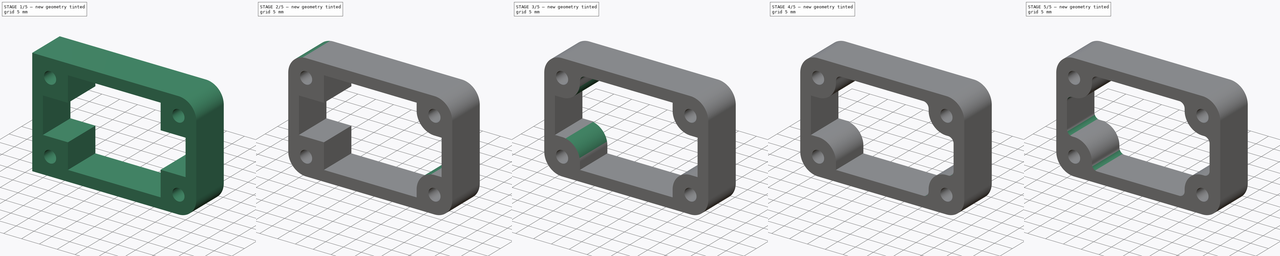
[diagram: build sequence overview — one tinted view per stage of 5, left to right]
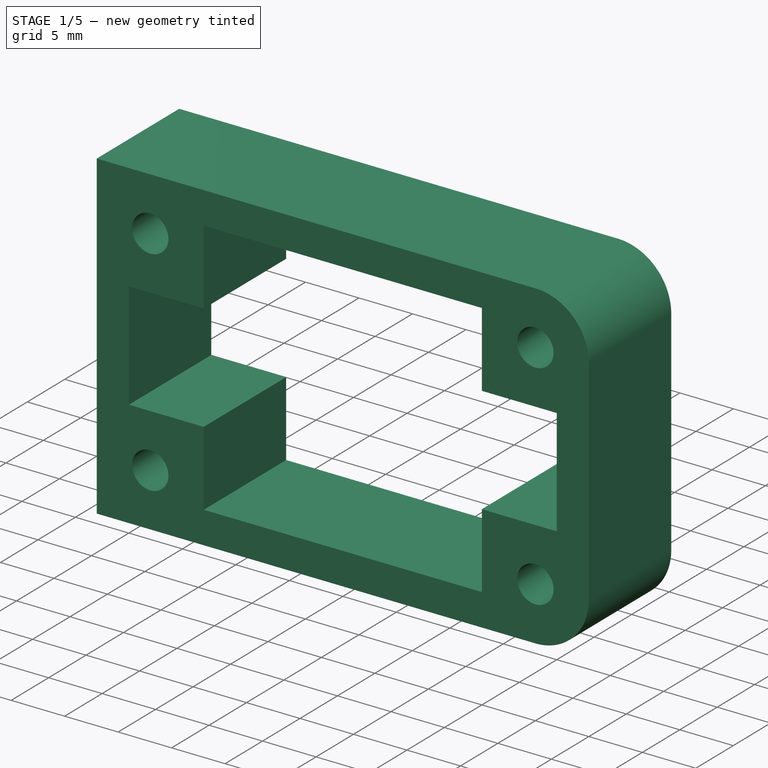
[diagram: stage 1 of 5 — iso view after this stage's code; geometry added in this stage tinted green]
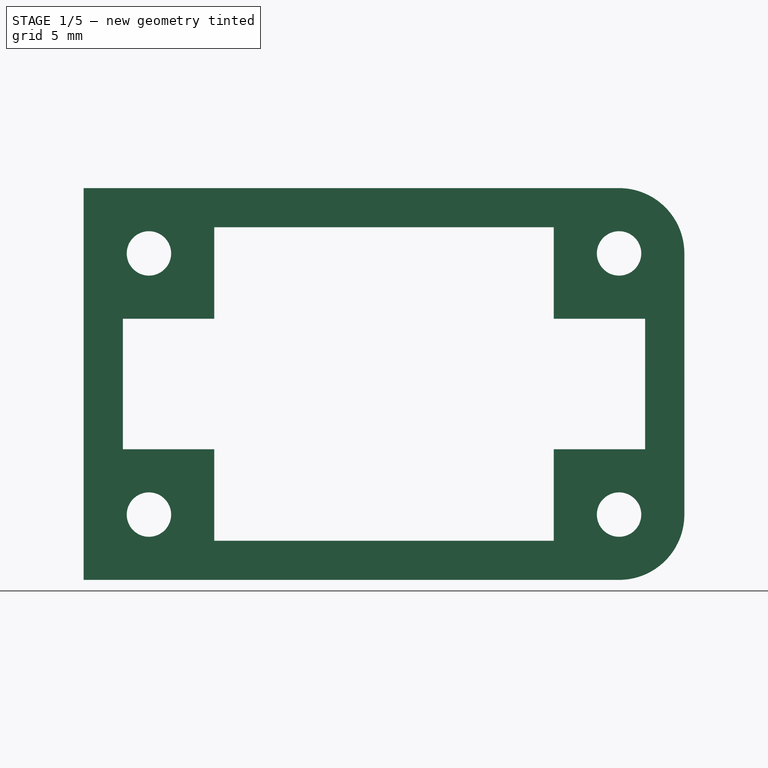
[diagram: stage 1 of 5 — front view after this stage's code; geometry added in this stage tinted green]
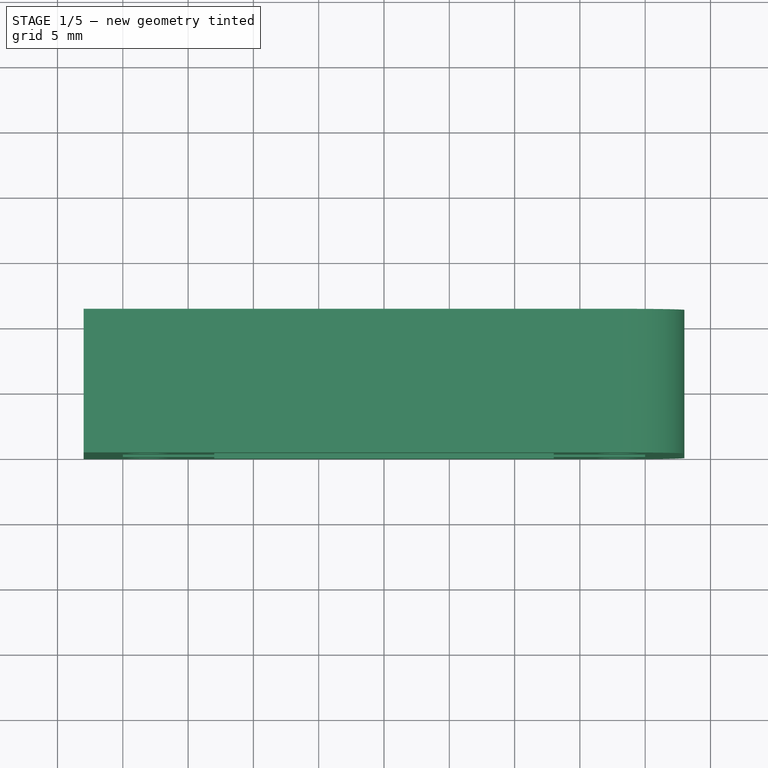
[diagram: stage 1 of 5 — top view after this stage's code; geometry added in this stage tinted green]
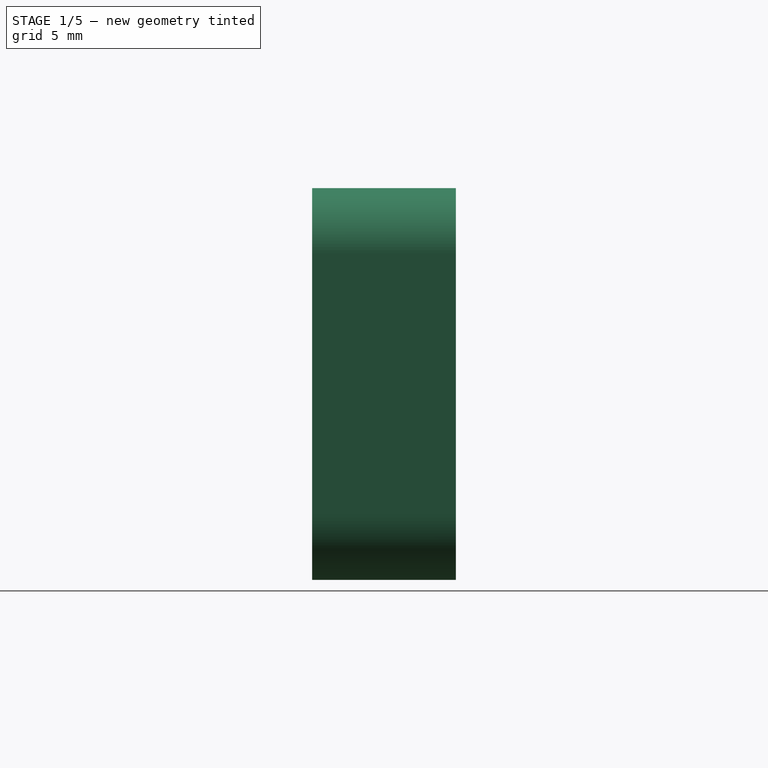
[diagram: stage 1 of 5 — right view after this stage's code; geometry added in this stage tinted green]
FCSTD DOCUMENT  (FreeCAD 0.16R6706 (Git))
Label: DriveMountStandoff
License: All rights reserved
LicenseURL: http://en.wikipedia.org/wiki/All_rights_reserved
objects: PartDesign::Fillet×16, Sketcher::SketchObject×1, PartDesign::Pad×1
note: 19 computed .brp shape members not serialized (recipe doc carries the construction recipe); baked Part::Feature solids carry a one-line shape summary decoded from their .brp

FEATURE [Sketcher::SketchObject] Sketch006
  Placement = pos=(0,25,0) rot=(0,0.707107,0.707107;3.14159rad)
  sketch-geometry (26):
    g0: Circle CenterX=-18 CenterY=20 CenterZ=0 NormalX=0 NormalY=0 NormalZ=1 Radius=1.7
    g1: Circle CenterX=18 CenterY=20 CenterZ=0 NormalX=0 NormalY=0 NormalZ=1 Radius=1.7
    g2: Circle CenterX=-18 CenterY=40 CenterZ=0 NormalX=0 NormalY=0 NormalZ=1 Radius=1.7
    g3: Circle CenterX=18 CenterY=40 CenterZ=0 NormalX=0 NormalY=0 NormalZ=1 Radius=1.7
    g4: LineSegment [constr] StartX=-18 StartY=40 StartZ=0 EndX=-18 EndY=20 EndZ=0
    g5: LineSegment StartX=-23 StartY=45 StartZ=0 EndX=23 EndY=45 EndZ=0
    g6: LineSegment StartX=23 StartY=45 StartZ=0 EndX=23 EndY=15 EndZ=0
    g7: LineSegment StartX=23 StartY=15 StartZ=0 EndX=-23 EndY=15 EndZ=0
    g8: LineSegment StartX=-23 StartY=15 StartZ=0 EndX=-23 EndY=45 EndZ=0
    g9: LineSegment [constr] StartX=-13 StartY=35 StartZ=0 EndX=13 EndY=35 EndZ=0
    g10: LineSegment [constr] StartX=13 StartY=35 StartZ=0 EndX=13 EndY=25 EndZ=0
    g11: LineSegment [constr] StartX=13 StartY=25 StartZ=0 EndX=-13 EndY=25 EndZ=0
    g12: LineSegment [constr] StartX=-13 StartY=25 StartZ=0 EndX=-13 EndY=35 EndZ=0
    g13: LineSegment StartX=-13 StartY=35 StartZ=0 EndX=-13 EndY=42 EndZ=0
    g14: LineSegment StartX=-13 StartY=42 StartZ=0 EndX=13 EndY=42 EndZ=0
    g15: LineSegment StartX=13 StartY=42 StartZ=0 EndX=13 EndY=35 EndZ=0
    g16: LineSegment StartX=13 StartY=35 StartZ=0 EndX=20 EndY=35 EndZ=0
    g17: LineSegment StartX=20 StartY=35 StartZ=0 EndX=20 EndY=25 EndZ=0
    g18: LineSegment StartX=20 StartY=25 StartZ=0 EndX=13 EndY=25 EndZ=0
    g19: LineSegment StartX=13 StartY=25 StartZ=0 EndX=13 EndY=18 EndZ=0
    g20: LineSegment StartX=13 StartY=18 StartZ=0 EndX=-13 EndY=18 EndZ=0
    g21: LineSegment StartX=-13 StartY=18 StartZ=0 EndX=-13 EndY=25 EndZ=0
    g22: LineSegment StartX=-13 StartY=25 StartZ=0 EndX=-20 EndY=25 EndZ=0
    g23: LineSegment StartX=-20 StartY=25 StartZ=0 EndX=-20 EndY=35 EndZ=0
    g24: LineSegment StartX=-20 StartY=35 StartZ=0 EndX=-13 EndY=35 EndZ=0
    g25: GeomPoint [constr] X=0 Y=30 Z=0
  constraints (68):
    c: Radius(g0) = 1.7
    c: Equal(g0,g1)
    c: Symmetric(g1,g0,g-2)
    c: DistanceX(g0,g1) = 36
    c: DistanceY(g-1,g1) = 20
    c: Equal(g2,g3)
    c: Equal(g3,g1)
    c: Symmetric(g2,g3,g-2)
    c: Coincident(g4,g2)
    c: Coincident(g4,g0)
    c: Vertical(g4)
    c: DistanceY(g0,g2) = 20
    c: Coincident(g5,g6)
    c: Coincident(g6,g7)
    c: Coincident(g7,g8)
    c: Coincident(g8,g5)
    c: Horizontal(g5)
    c: Horizontal(g7)
    c: Vertical(g6)
    c: Vertical(g8)
    c: Symmetric(g7,g6,g-2)
    c: DistanceX(g1,g6) = 5
    c: DistanceY(g6,g1) = 5
    c: DistanceY(g3,g5) = 5
    c: Coincident(g9,g10)
    c: Coincident(g10,g11)
    c: Coincident(g11,g12)
    c: Coincident(g12,g9)
    c: Horizontal(g9)
    c: Horizontal(g11)
    c: Vertical(g10)
    c: Vertical(g12)
    c: Coincident(g9,g13)
    c: Vertical(g13)
    c: Coincident(g13,g14)
    c: Horizontal(g14)
    c: Coincident(g14,g15)
    c: Coincident(g15,g9)
    c: Vertical(g15)
    c: Coincident(g15,g16)
    c: Horizontal(g16)
    c: Coincident(g16,g17)
    c: Vertical(g17)
    c: Coincident(g17,g18)
    c: Coincident(g18,g10)
    c: Horizontal(g18)
    c: Coincident(g18,g19)
    c: Vertical(g19)
    c: Coincident(g19,g20)
    c: Horizontal(g20)
    c: Coincident(g20,g21)
    c: Coincident(g21,g11)
    c: Vertical(g21)
    c: Coincident(g21,g22)
    c: Horizontal(g22)
    c: Coincident(g22,g23)
    c: Vertical(g23)
    c: Coincident(g23,g24)
    c: Coincident(g24,g13)
    c: Horizontal(g24)
    c: Symmetric(g7,g5,g25)
    c: Symmetric(g9,g10,g25)
    c: Symmetric(g13,g19,g25)
    c: Symmetric(g22,g16,g25)
    c: DistanceY(g23,g2) = 5
    c: DistanceX(g14,g3) = 5
    c: DistanceY(g13,g5) = 3
    c: DistanceX(g7,g22) = 3
FEATURE [PartDesign::Pad] Pad
  Length = 11
  Length2 = 100
  Placement = pos=(0,25,0) rot=(0,0.707107,0.707107;3.14159rad)
  Sketch = -> Sketch006
  Type = 0
FEATURE [PartDesign::Fillet] Fillet
  Base = -> Pad [Edge1]
  Placement = pos=(0,25,0) rot=(0,0.707107,0.707107;3.14159rad)
  Radius = 5
FEATURE [PartDesign::Fillet] Fillet001
  Base = -> Fillet [Edge47]
  Placement = pos=(0,25,0) rot=(0,0.707107,0.707107;3.14159rad)
  Radius = 5
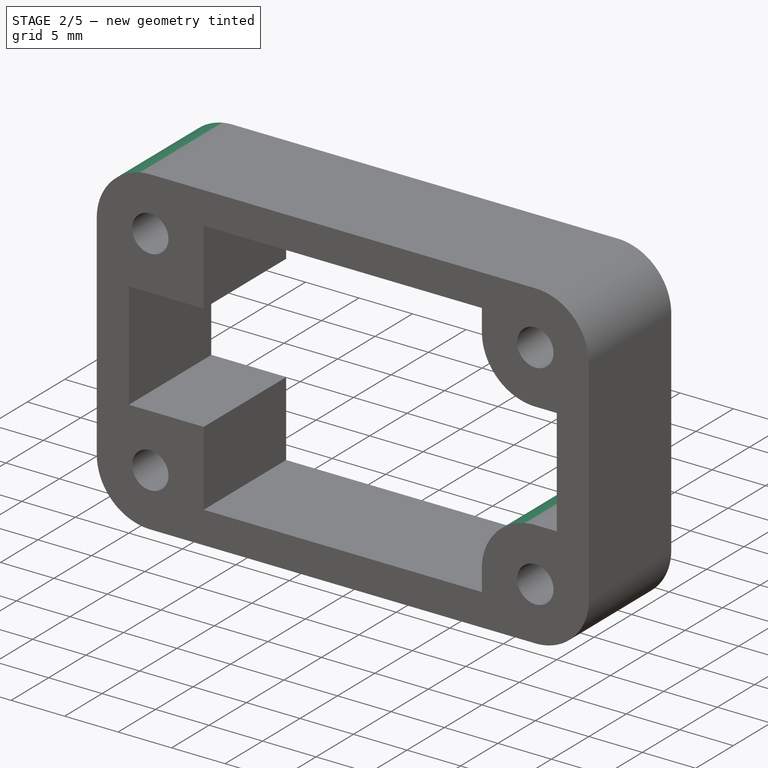
[diagram: stage 2 of 5 — iso view after this stage's code; geometry added in this stage tinted green]
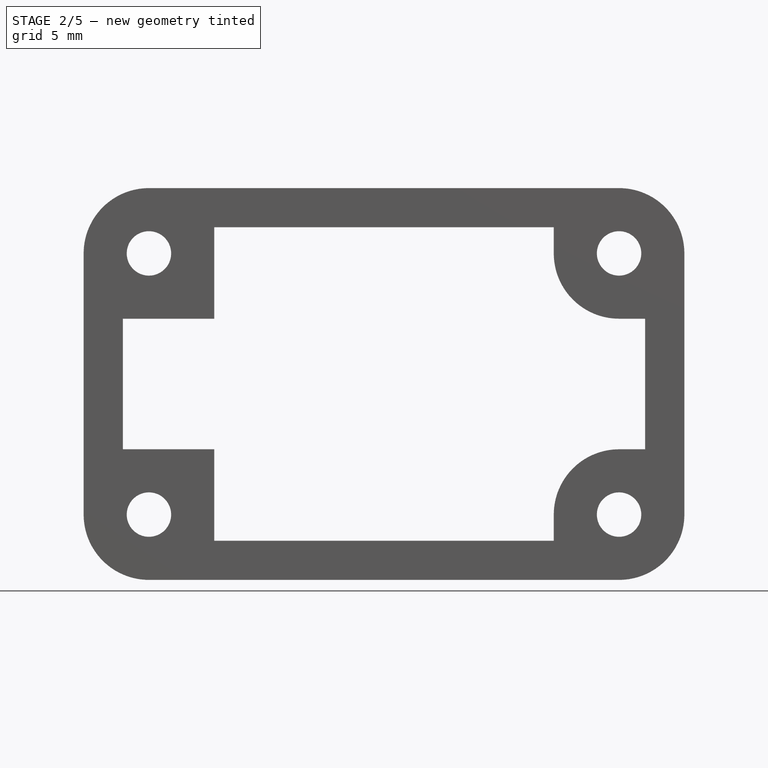
[diagram: stage 2 of 5 — front view after this stage's code; geometry added in this stage tinted green]
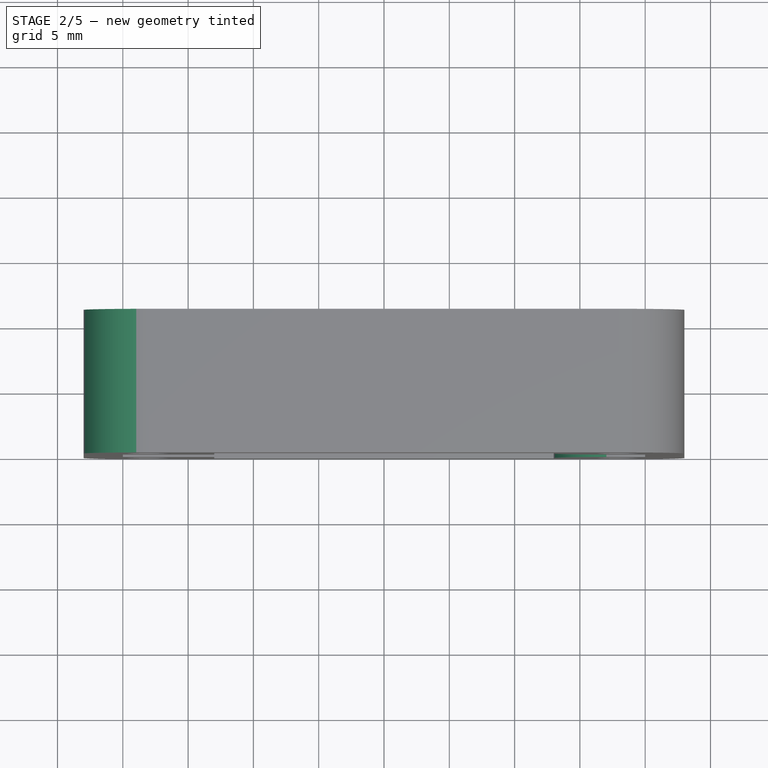
[diagram: stage 2 of 5 — top view after this stage's code; geometry added in this stage tinted green]
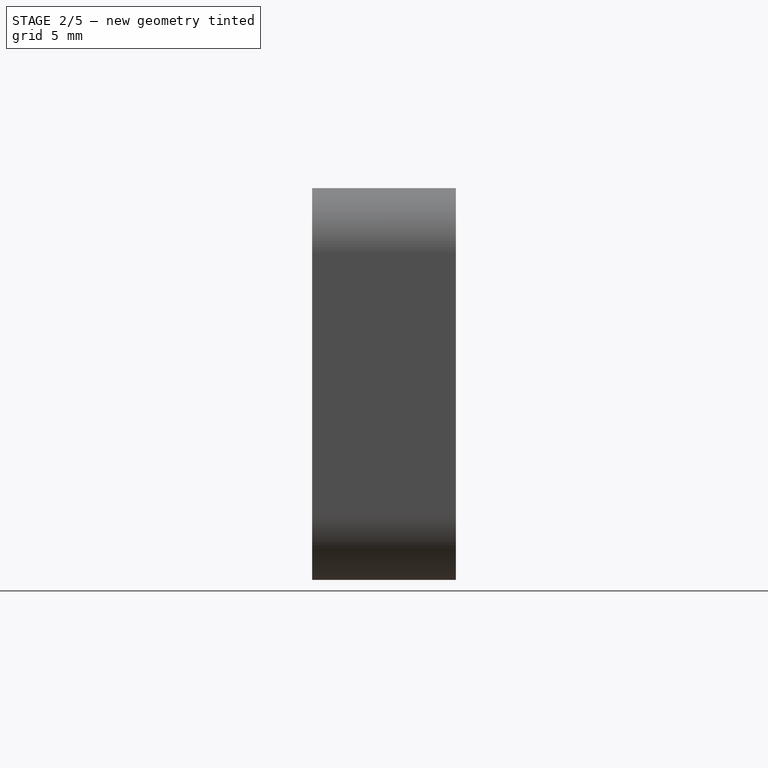
[diagram: stage 2 of 5 — right view after this stage's code; geometry added in this stage tinted green]
FEATURE [PartDesign::Fillet] Fillet002
  Base = -> Fillet001 [Edge30]
  Placement = pos=(0,25,0) rot=(0,0.707107,0.707107;3.14159rad)
  Radius = 5
FEATURE [PartDesign::Fillet] Fillet003
  Base = -> Fillet002 [Edge31]
  Placement = pos=(0,25,0) rot=(0,0.707107,0.707107;3.14159rad)
  Radius = 5
FEATURE [PartDesign::Fillet] Fillet004
  Base = -> Fillet003 [Edge58]
  Placement = pos=(0,25,0) rot=(0,0.707107,0.707107;3.14159rad)
  Radius = 5
FEATURE [PartDesign::Fillet] Fillet005
  Base = -> Fillet004 [Edge41]
  Placement = pos=(0,25,0) rot=(0,0.707107,0.707107;3.14159rad)
  Radius = 5
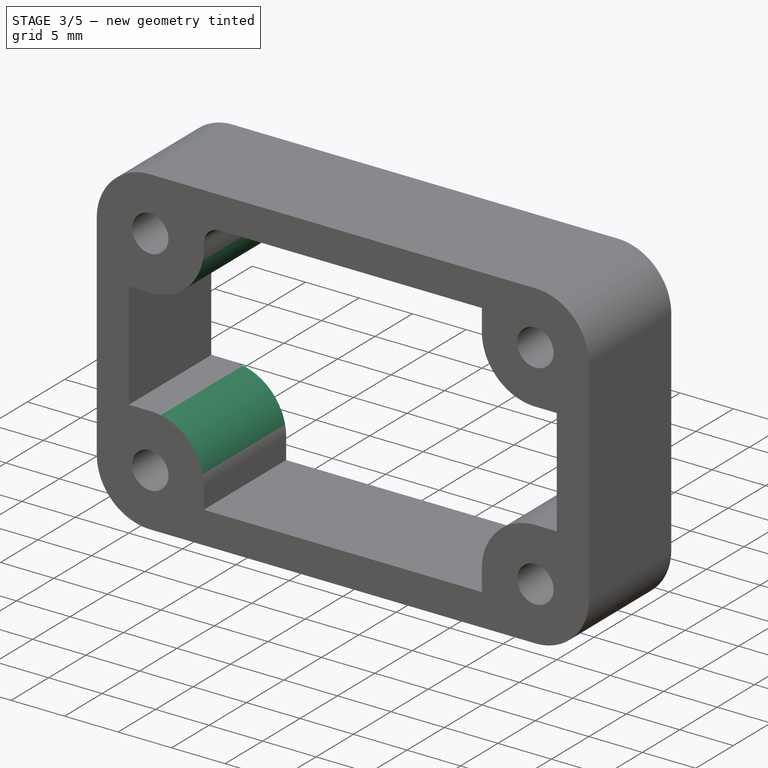
[diagram: stage 3 of 5 — iso view after this stage's code; geometry added in this stage tinted green]
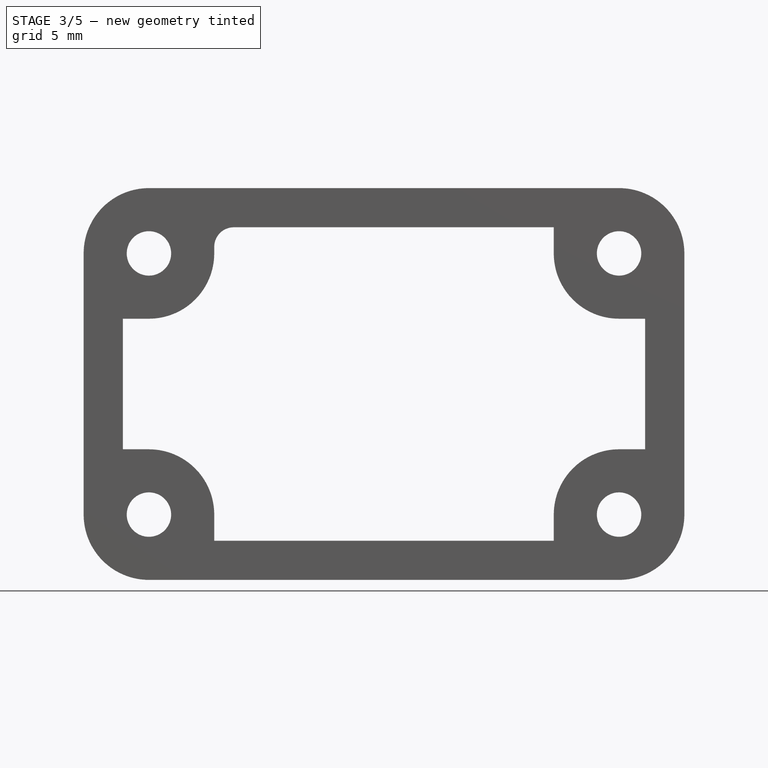
[diagram: stage 3 of 5 — front view after this stage's code; geometry added in this stage tinted green]
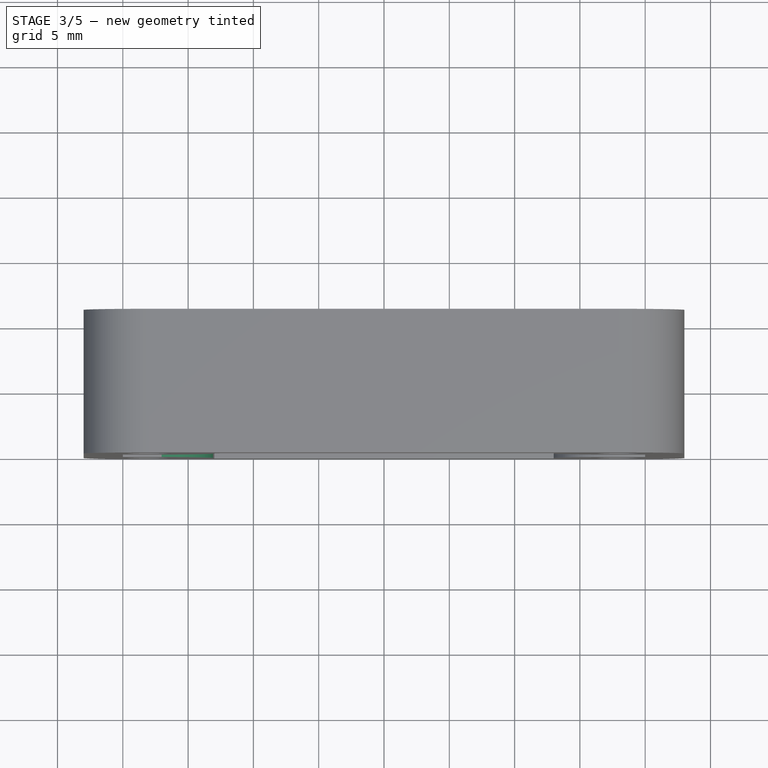
[diagram: stage 3 of 5 — top view after this stage's code; geometry added in this stage tinted green]
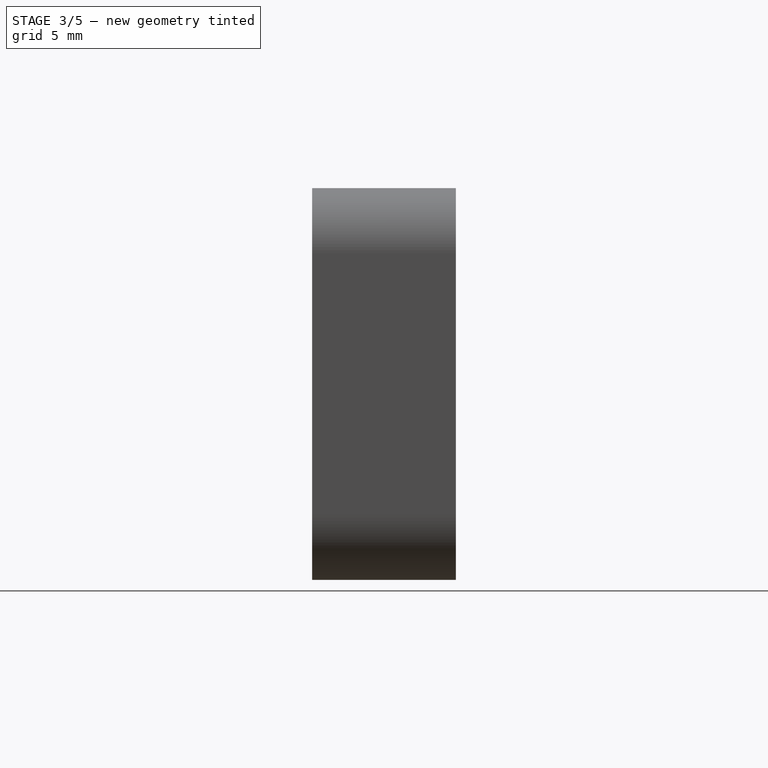
[diagram: stage 3 of 5 — right view after this stage's code; geometry added in this stage tinted green]
FEATURE [PartDesign::Fillet] Fillet006
  Base = -> Fillet005 [Edge42]
  Placement = pos=(0,25,0) rot=(0,0.707107,0.707107;3.14159rad)
  Radius = 5
FEATURE [PartDesign::Fillet] Fillet007
  Base = -> Fillet006 [Edge43]
  Placement = pos=(0,25,0) rot=(0,0.707107,0.707107;3.14159rad)
  Radius = 5
FEATURE [PartDesign::Fillet] Fillet008
  Base = -> Fillet007 [Edge46]
  Placement = pos=(0,25,0) rot=(0,0.707107,0.707107;3.14159rad)
  Radius = 1.5
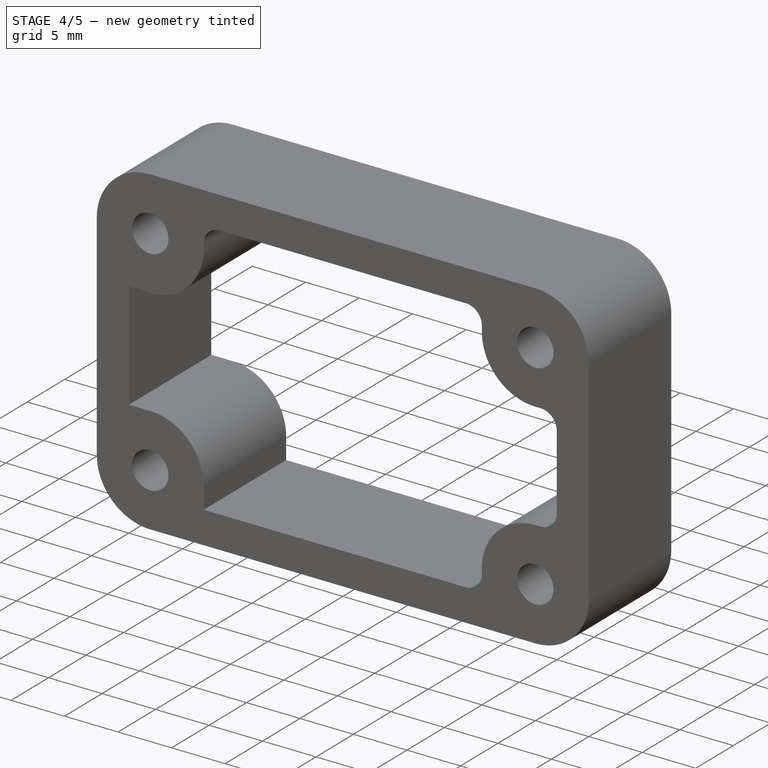
[diagram: stage 4 of 5 — iso view after this stage's code; geometry added in this stage tinted green]
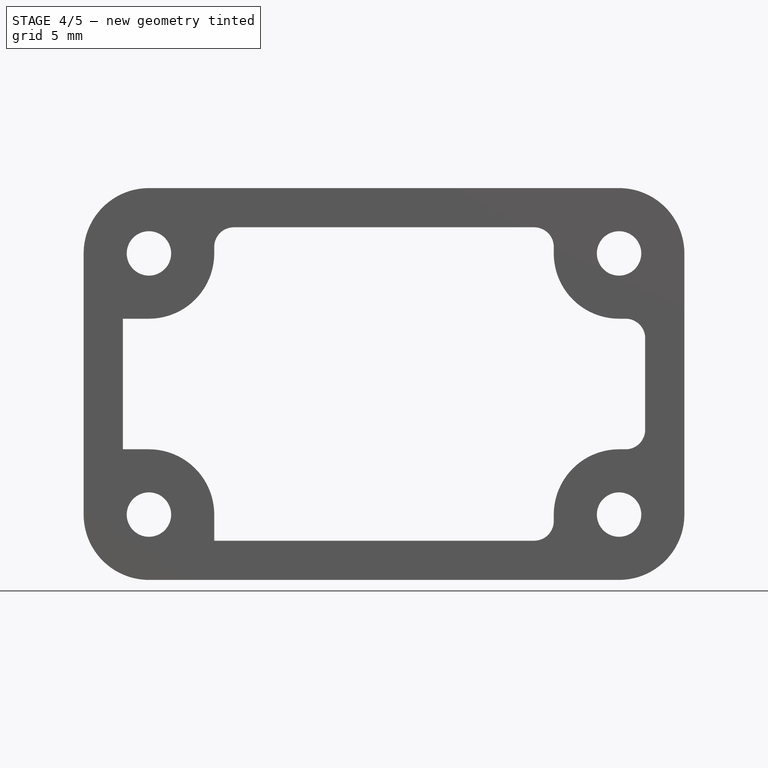
[diagram: stage 4 of 5 — front view after this stage's code; geometry added in this stage tinted green]
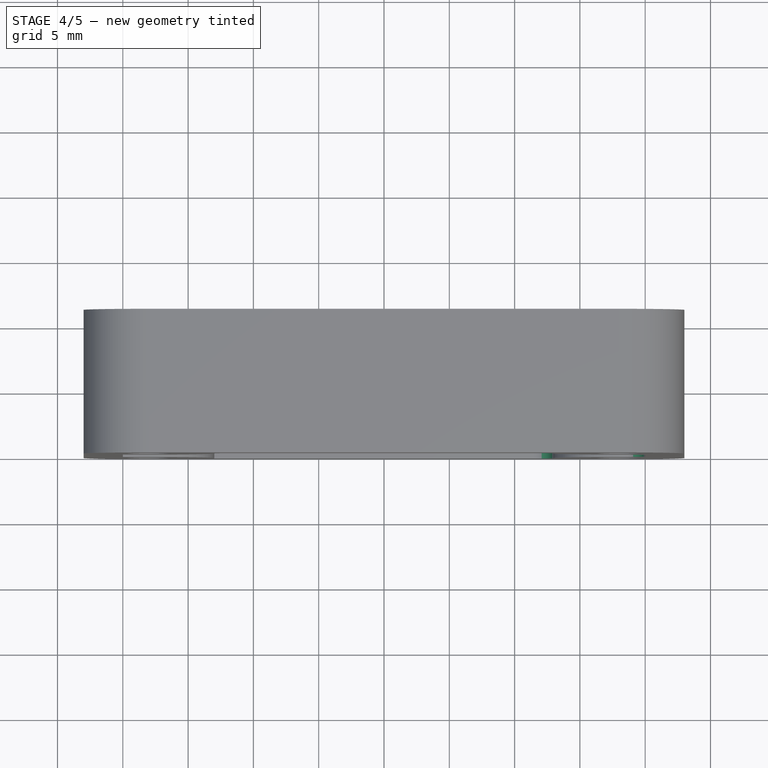
[diagram: stage 4 of 5 — top view after this stage's code; geometry added in this stage tinted green]
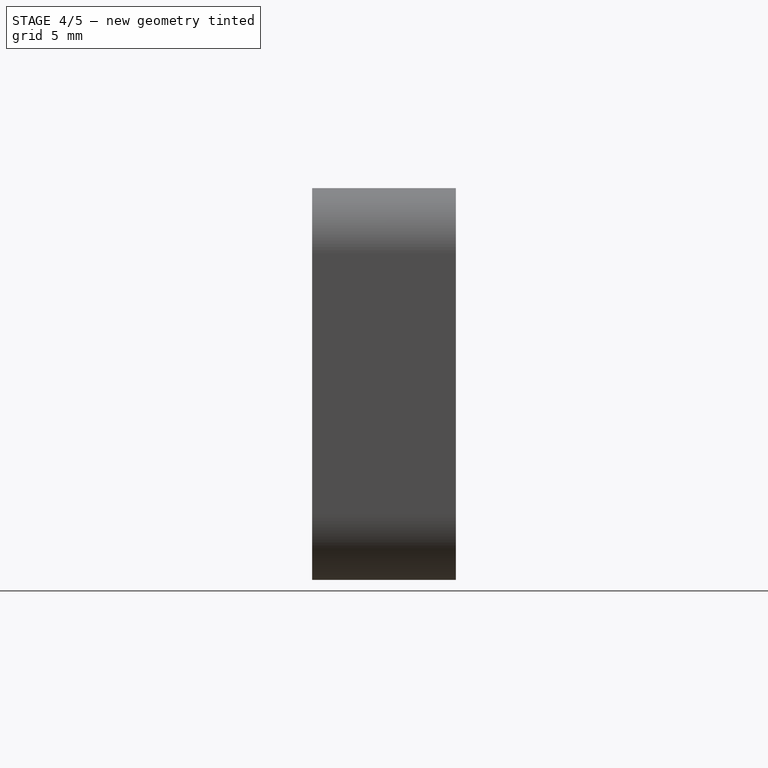
[diagram: stage 4 of 5 — right view after this stage's code; geometry added in this stage tinted green]
FEATURE [PartDesign::Fillet] Fillet009
  Base = -> Fillet008 [Edge37]
  Placement = pos=(0,25,0) rot=(0,0.707107,0.707107;3.14159rad)
  Radius = 1.5
FEATURE [PartDesign::Fillet] Fillet010
  Base = -> Fillet009 [Edge46]
  Placement = pos=(0,25,0) rot=(0,0.707107,0.707107;3.14159rad)
  Radius = 1.5
FEATURE [PartDesign::Fillet] Fillet011
  Base = -> Fillet010 [Edge39]
  Placement = pos=(0,25,0) rot=(0,0.707107,0.707107;3.14159rad)
  Radius = 1.5
FEATURE [PartDesign::Fillet] Fillet012
  Base = -> Fillet011 [Edge48]
  Placement = pos=(0,25,0) rot=(0,0.707107,0.707107;3.14159rad)
  Radius = 1.5
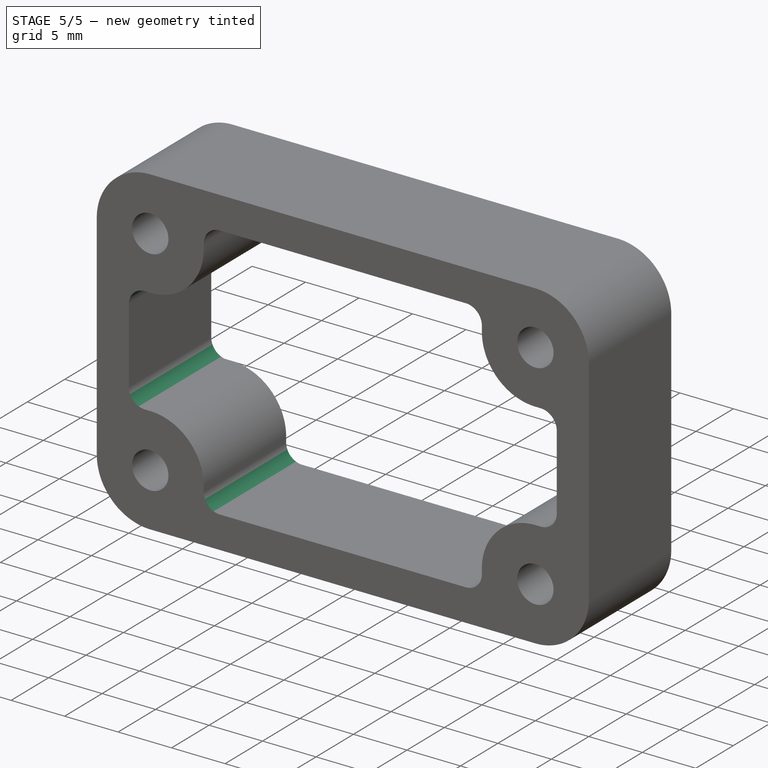
[diagram: stage 5 of 5 — iso view after this stage's code; geometry added in this stage tinted green]
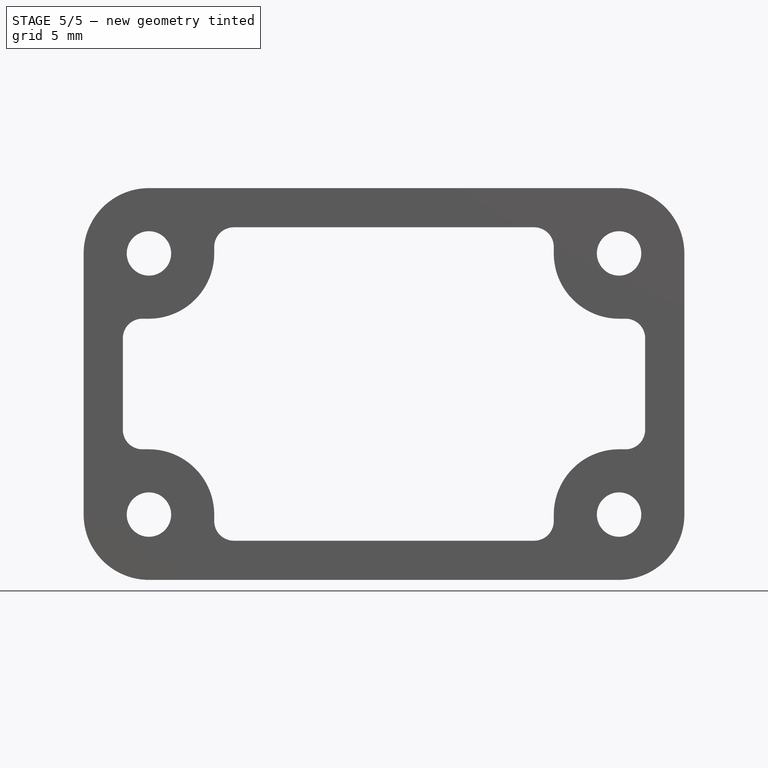
[diagram: stage 5 of 5 — front view after this stage's code; geometry added in this stage tinted green]
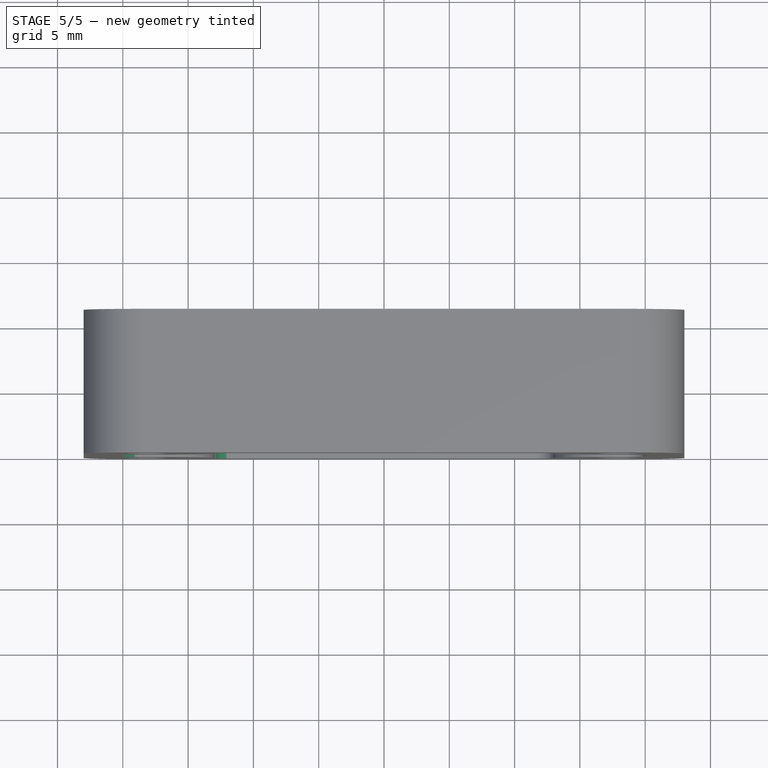
[diagram: stage 5 of 5 — top view after this stage's code; geometry added in this stage tinted green]
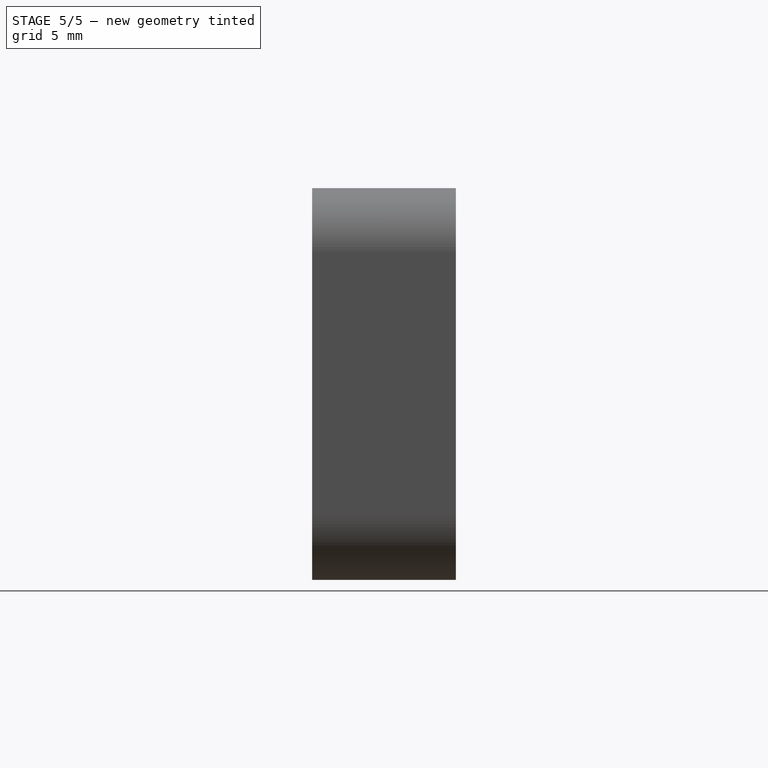
[diagram: stage 5 of 5 — right view after this stage's code; geometry added in this stage tinted green]
FEATURE [PartDesign::Fillet] Fillet013
  Base = -> Fillet012 [Edge57]
  Placement = pos=(0,25,0) rot=(0,0.707107,0.707107;3.14159rad)
  Radius = 1.5
FEATURE [PartDesign::Fillet] Fillet014
  Base = -> Fillet013 [Edge48]
  Placement = pos=(0,25,0) rot=(0,0.707107,0.707107;3.14159rad)
  Radius = 1.5
FEATURE [PartDesign::Fillet] Fillet015
  Base = -> Fillet014 [Edge45]
  Placement = pos=(0,25,0) rot=(0,0.707107,0.707107;3.14159rad)
  Radius = 1.5
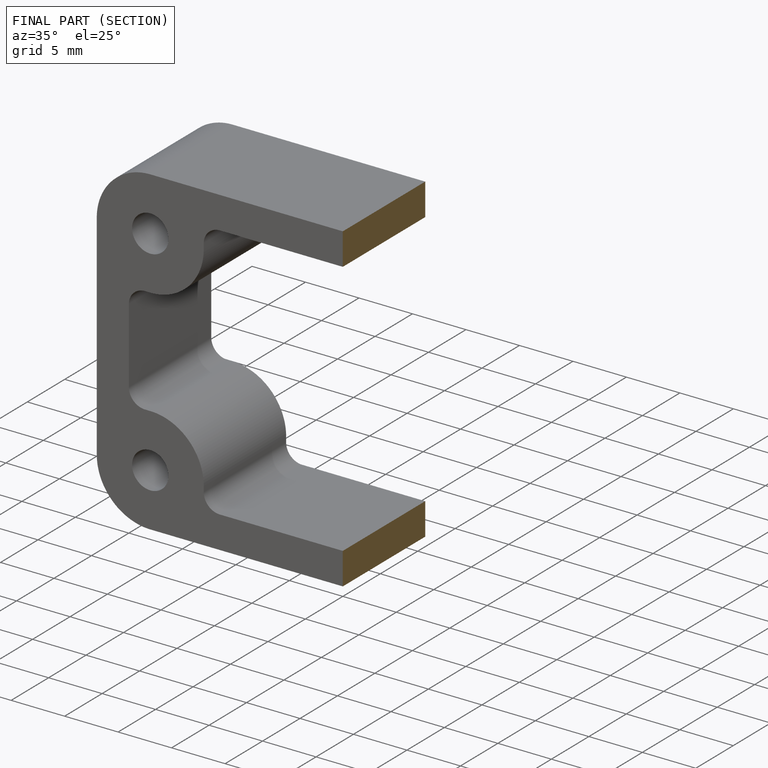
[diagram: finished part — half-section view (interior)]
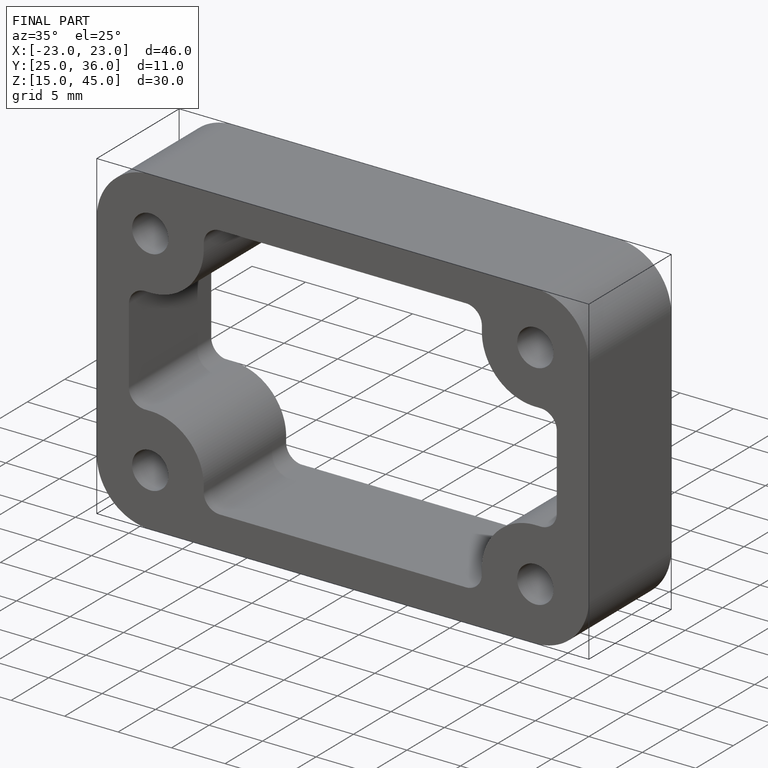
[diagram: finished part — iso view with bounding-box wireframe]
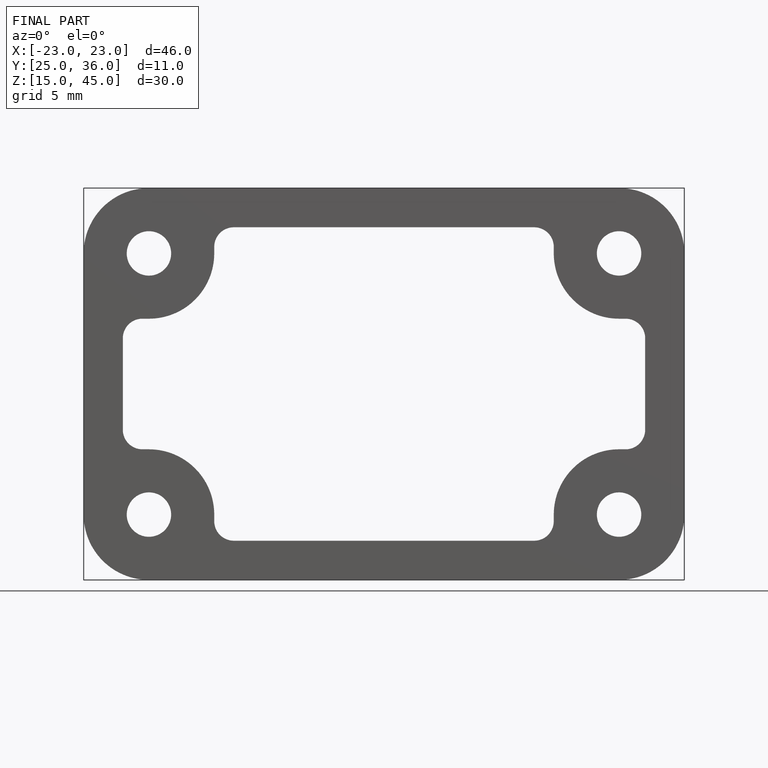
[diagram: finished part — front view with bounding-box wireframe]
